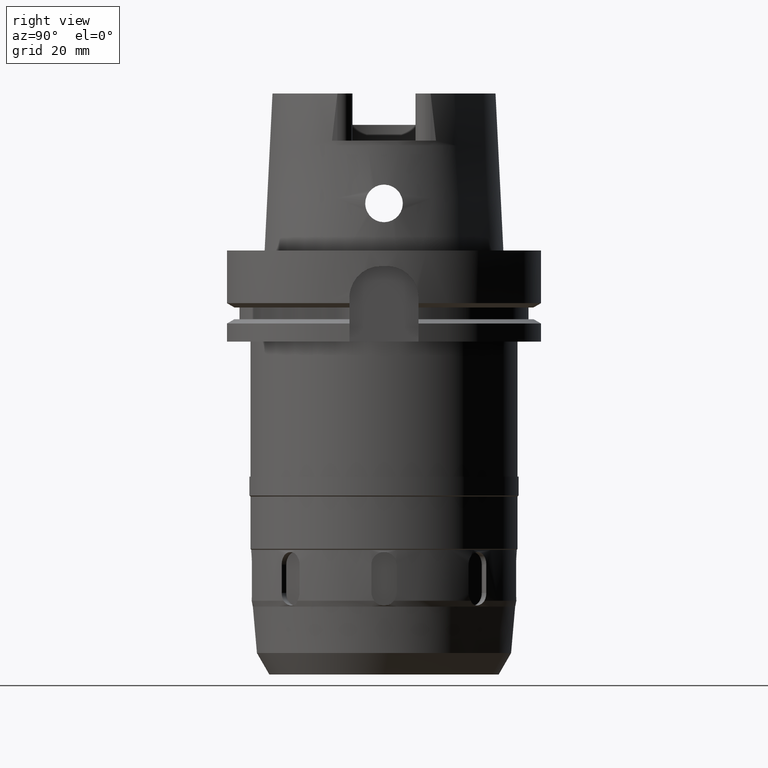
[diagram: clean part render]
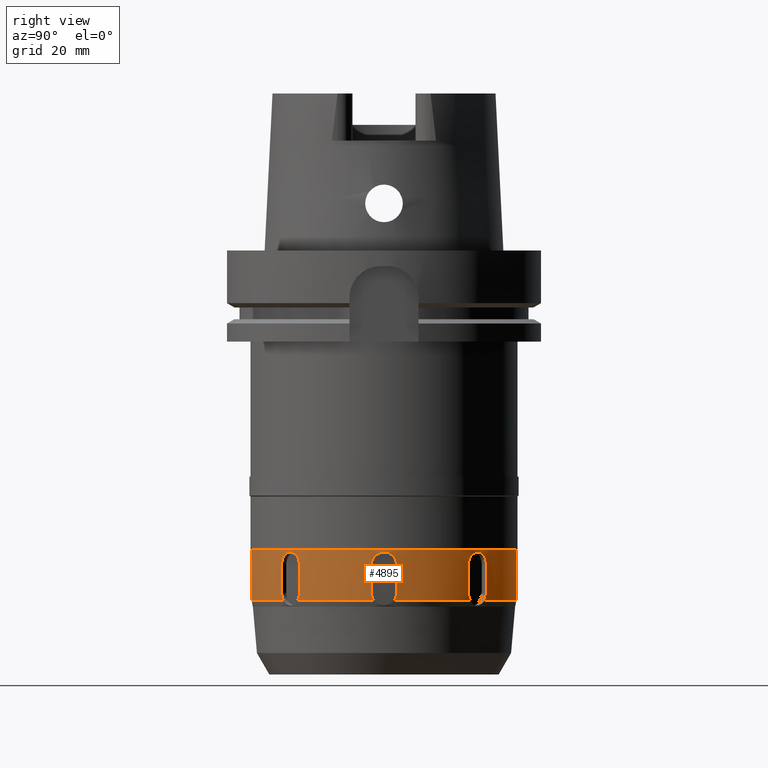
[diagram: same view with one face highlighted and labeled with its STEP entity id]
A machine part, right view. The second image highlights one B-rep face of the part: STEP entity #4895.
In plain terms, the highlighted cylindrical surface (partial cylindrical patch) has radius 42.25 mm, axis along (0, 0, 1).
Its self-contained STEP definition (entity closure, byte-faithful):
#1075=CARTESIAN_POINT('',(3.200150076244E1,2.758562032928E1,-1.115E2));
#1084=CARTESIAN_POINT('',(2.758562032928E1,3.200150076244E1,-1.115E2));
#1089=CARTESIAN_POINT('',(0.E0,0.E0,-1.115E2));
#1090=DIRECTION('',(0.E0,0.E0,1.E0));
#1091=DIRECTION('',(6.529140906339E-1,7.574319707087E-1,0.E0));
#1092=AXIS2_PLACEMENT_3D('',#1089,#1090,#1091);
#1121=CARTESIAN_POINT('',(3.122498999199E0,-4.213445739534E1,-1.115E2));
#1126=CARTESIAN_POINT('',(0.E0,0.E0,-1.115E2));
#1127=DIRECTION('',(0.E0,0.E0,1.E0));
#1128=DIRECTION('',(7.390530175619E-2,-9.972652637951E-1,0.E0));
#1129=AXIS2_PLACEMENT_3D('',#1126,#1127,#1128);
#1143=CARTESIAN_POINT('',(3.200150076244E1,-2.758562032928E1,-1.115E2));
#1148=CARTESIAN_POINT('',(0.E0,0.E0,-1.115E2));
#1149=DIRECTION('',(0.E0,0.E0,1.E0));
#1150=DIRECTION('',(7.574319707087E-1,-6.529140906339E-1,0.E0));
#1151=AXIS2_PLACEMENT_3D('',#1148,#1149,#1150);
#1165=CARTESIAN_POINT('',(4.213445739534E1,3.122498999199E0,-1.115E2));
#1170=CARTESIAN_POINT('',(0.E0,0.E0,-1.115E2));
#1171=DIRECTION('',(0.E0,0.E0,1.E0));
#1172=DIRECTION('',(9.972652637951E-1,7.390530175620E-2,0.E0));
#1173=AXIS2_PLACEMENT_3D('',#1170,#1171,#1172);
#1192=CARTESIAN_POINT('',(2.691264296360E1,3.256949721309E1,-1.E2));
#1193=CARTESIAN_POINT('',(2.691264296360E1,3.256949721309E1,-9.964412326953E1));
#1194=CARTESIAN_POINT('',(2.698342056144E1,3.251120756195E1,-9.895880278187E1));
#1195=CARTESIAN_POINT('',(2.729508354297E1,3.225108457663E1,-9.797667918873E1));
#1196=CARTESIAN_POINT('',(2.778462431295E1,3.183175565941E1,-9.714064139024E1));
#1197=CARTESIAN_POINT('',(2.841070592031E1,3.127585263605E1,-9.649703540511E1));
#1198=CARTESIAN_POINT('',(2.913141343468E1,3.060662857315E1,-9.609164836831E1));
#1199=CARTESIAN_POINT('',(2.962312872566E1,3.012739428460E1,-9.6E1));
#1200=CARTESIAN_POINT('',(2.987526150513E1,2.987526150513E1,-9.6E1));
#1205=CARTESIAN_POINT('',(2.987526150513E1,2.987526150513E1,-9.6E1));
#1206=CARTESIAN_POINT('',(3.012681051455E1,2.962371249571E1,-9.6E1));
#1207=CARTESIAN_POINT('',(3.060516093468E1,2.913293883098E1,-9.609122882433E1));
#1208=CARTESIAN_POINT('',(3.127381813467E1,2.841294227425E1,-9.649538082540E1));
#1209=CARTESIAN_POINT('',(3.182994570225E1,2.778670493551E1,-9.713789402525E1));
#1210=CARTESIAN_POINT('',(3.224999459783E1,2.729637973698E1,-9.797361371255E1));
#1211=CARTESIAN_POINT('',(3.251092526504E1,2.698376401967E1,-9.895659609773E1));
#1212=CARTESIAN_POINT('',(3.256949721309E1,2.691264296360E1,-9.964325822412E1));
#1213=CARTESIAN_POINT('',(3.256949721309E1,2.691264296360E1,-1.E2));
#1218=DIRECTION('',(0.E0,0.E0,-1.E0));
#1219=VECTOR('',#1218,9.E0);
#1220=CARTESIAN_POINT('',(3.256949721309E1,2.691264296360E1,-1.E2));
#1221=LINE('',#1220,#1219);
#1225=CARTESIAN_POINT('',(3.256949721309E1,2.691264296360E1,-1.09E2));
#1226=CARTESIAN_POINT('',(3.256949721309E1,2.691264296360E1,-1.093046823708E2));
#1227=CARTESIAN_POINT('',(3.252652807400E1,2.696478558957E1,-1.098964967229E2));
#1228=CARTESIAN_POINT('',(3.233279594765E1,2.719746119872E1,-1.107563702224E2));
#1229=CARTESIAN_POINT('',(3.212653177149E1,2.744057447265E1,-1.112614745707E2));
#1230=CARTESIAN_POINT('',(3.200150076244E1,2.758562032928E1,-1.115E2));
#1235=CARTESIAN_POINT('',(4.213445739534E1,3.122498999199E0,-1.115E2));
#1236=CARTESIAN_POINT('',(4.212030484233E1,3.313471083439E0,-1.112614759432E2));
#1237=CARTESIAN_POINT('',(4.209424868855E1,3.631228004772E0,-1.107563738306E2));
#1238=CARTESIAN_POINT('',(4.206671143643E1,3.932744535523E0,-1.098965027757E2));
#1239=CARTESIAN_POINT('',(4.206022467843E1,4.E0,-1.093046849866E2));
#1240=CARTESIAN_POINT('',(4.206022467843E1,4.E0,-1.09E2));
#1245=DIRECTION('',(0.E0,0.E0,1.E0));
#1246=VECTOR('',#1245,9.E0);
#1247=CARTESIAN_POINT('',(4.206022467843E1,4.E0,-1.09E2));
#1248=LINE('',#1247,#1246);
#1252=CARTESIAN_POINT('',(4.206022467843E1,4.E0,-1.E2));
#1253=CARTESIAN_POINT('',(4.206022467843E1,4.E0,-9.964409595300E1));
#1254=CARTESIAN_POINT('',(4.206905641517E1,3.908721013954E0,-9.895873734692E1));
#1255=CARTESIAN_POINT('',(4.210550239839E1,3.504384892782E0,-9.797661774419E1));
#1256=CARTESIAN_POINT('',(4.215514888444E1,2.861719118612E0,-9.714060963032E1));
#1257=CARTESIAN_POINT('',(4.220477085138E1,2.025947307364E0,-9.649702974634E1));
#1258=CARTESIAN_POINT('',(4.224117382355E1,1.043159636513E0,-9.609165660755E1));
#1259=CARTESIAN_POINT('',(4.225E1,3.565816213049E-1,-9.6E1));
#1260=CARTESIAN_POINT('',(4.225E1,0.E0,-9.6E1));
#1265=CARTESIAN_POINT('',(4.225E1,0.E0,-9.6E1));
#1266=CARTESIAN_POINT('',(4.225E1,-3.557355311103E-1,-9.6E1));
#1267=CARTESIAN_POINT('',(4.224121593392E1,-1.041001113723E0,
-9.609122371531E1));
#1268=CARTESIAN_POINT('',(4.220491289443E1,-2.022952271553E0,
-9.649538171520E1));
#1269=CARTESIAN_POINT('',(4.215533587534E1,-2.859034624193E0,
-9.713792164499E1));
#1270=CARTESIAN_POINT('',(4.210564213425E1,-3.502769565699E0,
-9.797367123902E1));
#1271=CARTESIAN_POINT('',(4.206909681891E1,-3.908307862595E0,
-9.895666037967E1));
#1272=CARTESIAN_POINT('',(4.206022467843E1,-4.E0,-9.964328518056E1));
#1273=CARTESIAN_POINT('',(4.206022467843E1,-4.E0,-1.E2));
#1278=DIRECTION('',(0.E0,0.E0,-1.E0));
#1279=VECTOR('',#1278,9.E0);
#1280=CARTESIAN_POINT('',(4.206022467843E1,-4.E0,-1.E2));
#1281=LINE('',#1280,#1279);
#1285=CARTESIAN_POINT('',(4.206022467843E1,-4.E0,-1.09E2));
#1286=CARTESIAN_POINT('',(4.206022467843E1,-4.E0,-1.093046823709E2));
#1287=CARTESIAN_POINT('',(4.206671131321E1,-3.932745825925E0,
-1.098964967231E2));
#1288=CARTESIAN_POINT('',(4.209424851398E1,-3.631230024554E0,
-1.107563702226E2));
#1289=CARTESIAN_POINT('',(4.212030476089E1,-3.313472182312E0,
-1.112614745707E2));
#1290=CARTESIAN_POINT('',(4.213445739534E1,-3.122498999199E0,-1.115E2));
#1295=CARTESIAN_POINT('',(3.200150076244E1,-2.758562032928E1,-1.115E2));
#1296=CARTESIAN_POINT('',(3.212653105194E1,-2.744057530739E1,
-1.112614759434E2));
#1297=CARTESIAN_POINT('',(3.233279464269E1,-2.719746275058E1,
-1.107563738310E2));
#1298=CARTESIAN_POINT('',(3.252652724860E1,-2.696478658924E1,
-1.098965027761E2));
#1299=CARTESIAN_POINT('',(3.256949721309E1,-2.691264296360E1,
-1.093046849868E2));
#1300=CARTESIAN_POINT('',(3.256949721309E1,-2.691264296360E1,-1.09E2));
#1305=DIRECTION('',(0.E0,0.E0,1.E0));
#1306=VECTOR('',#1305,9.E0);
#1307=CARTESIAN_POINT('',(3.256949721309E1,-2.691264296360E1,-1.09E2));
#1308=LINE('',#1307,#1306);
#1312=CARTESIAN_POINT('',(3.256949721309E1,-2.691264296360E1,-1.E2));
#1313=CARTESIAN_POINT('',(3.256949721309E1,-2.691264296360E1,
-9.964409625551E1));
#1314=CARTESIAN_POINT('',(3.251119826532E1,-2.698343186082E1,
-9.895873856366E1));
#1315=CARTESIAN_POINT('',(3.225106199133E1,-2.729511026822E1,
-9.797662242377E1));
#1316=CARTESIAN_POINT('',(3.183173695804E1,-2.778464567202E1,
-9.714061635166E1));
#1317=CARTESIAN_POINT('',(3.127584622027E1,-2.841071250349E1,
-9.649703485606E1));
#1318=CARTESIAN_POINT('',(3.060665528476E1,-2.913138515348E1,
-9.609166015983E1));
#1319=CARTESIAN_POINT('',(3.012740688897E1,-2.962311612129E1,
-9.600000000001E1));
#1320=CARTESIAN_POINT('',(2.987526150513E1,-2.987526150513E1,
-9.600000000001E1));
#1325=CARTESIAN_POINT('',(2.987526150513E1,-2.987526150513E1,
-9.600000000001E1));
#1326=CARTESIAN_POINT('',(2.962372352019E1,-3.012679949007E1,
-9.600000000001E1));
#1327=CARTESIAN_POINT('',(2.913296363444E1,-3.060513742838E1,
-9.609121920079E1));
#1328=CARTESIAN_POINT('',(2.841294295984E1,-3.127381787787E1,
-9.649537651769E1));
#1329=CARTESIAN_POINT('',(2.778668766295E1,-3.182996089155E1,
-9.713791313877E1));
#1330=CARTESIAN_POINT('',(2.729635599121E1,-3.225001466528E1,
-9.797366354296E1));
#1331=CARTESIAN_POINT('',(2.698375327855E1,-3.251093410902E1,
-9.895665603272E1));
#1332=CARTESIAN_POINT('',(2.691264296360E1,-3.256949721309E1,
-9.964328358017E1));
#1333=CARTESIAN_POINT('',(2.691264296360E1,-3.256949721309E1,-1.E2));
#1338=DIRECTION('',(0.E0,0.E0,-1.E0));
#1339=VECTOR('',#1338,9.E0);
#1340=CARTESIAN_POINT('',(2.691264296360E1,-3.256949721309E1,-1.E2));
#1341=LINE('',#1340,#1339);
#1345=CARTESIAN_POINT('',(2.691264296360E1,-3.256949721309E1,-1.09E2));
#1346=CARTESIAN_POINT('',(2.691264296360E1,-3.256949721309E1,
-1.093046823708E2));
#1347=CARTESIAN_POINT('',(2.696478558958E1,-3.252652807400E1,
-1.098964967229E2));
#1348=CARTESIAN_POINT('',(2.719746119872E1,-3.233279594764E1,
-1.107563702224E2));
#1349=CARTESIAN_POINT('',(2.744057447266E1,-3.212653177148E1,
-1.112614745707E2));
#1350=CARTESIAN_POINT('',(2.758562032928E1,-3.200150076244E1,-1.115E2));
#1355=CARTESIAN_POINT('',(3.122498999199E0,-4.213445739534E1,-1.115E2));
#1356=CARTESIAN_POINT('',(3.313471083442E0,-4.212030484233E1,
-1.112614759432E2));
#1357=CARTESIAN_POINT('',(3.631228004778E0,-4.209424868855E1,
-1.107563738305E2));
#1358=CARTESIAN_POINT('',(3.932744535525E0,-4.206671143643E1,
-1.098965027757E2));
#1359=CARTESIAN_POINT('',(4.E0,-4.206022467843E1,-1.093046849866E2));
#1360=CARTESIAN_POINT('',(4.E0,-4.206022467843E1,-1.09E2));
#1365=DIRECTION('',(0.E0,0.E0,1.E0));
#1366=VECTOR('',#1365,9.E0);
#1367=CARTESIAN_POINT('',(4.E0,-4.206022467843E1,-1.09E2));
#1368=LINE('',#1367,#1366);
#1372=CARTESIAN_POINT('',(4.E0,-4.206022467843E1,-1.E2));
#1373=CARTESIAN_POINT('',(4.E0,-4.206022467843E1,-9.964411288362E1));
#1374=CARTESIAN_POINT('',(3.908727827667E0,-4.206905572090E1,
-9.895879086456E1));
#1375=CARTESIAN_POINT('',(3.504456165407E0,-4.210549609205E1,
-9.797676082159E1));
#1376=CARTESIAN_POINT('',(2.861896862891E0,-4.215513616047E1,
-9.714079708869E1));
#1377=CARTESIAN_POINT('',(2.026204461012E0,-4.220475828468E1,
-9.649717709807E1));
#1378=CARTESIAN_POINT('',(1.043373405479E0,-4.224116946116E1,
-9.609170120449E1));
#1379=CARTESIAN_POINT('',(3.566683732338E-1,-4.225E1,-9.6E1));
#1380=CARTESIAN_POINT('',(1.447743281629E-14,-4.225E1,-9.6E1));
#1385=DIRECTION('',(-3.330751474785E-14,0.E0,-1.E0));
#1386=VECTOR('',#1385,7.5E-1);
#1387=CARTESIAN_POINT('',(0.E0,4.225E1,-9.525E1));
#1388=LINE('',#1387,#1386);
#1392=CARTESIAN_POINT('',(-1.980650333449E-14,4.225E1,-9.6E1));
#1393=CARTESIAN_POINT('',(3.555907458590E-1,4.225E1,-9.6E1));
#1394=CARTESIAN_POINT('',(1.040681701194E0,4.224122431111E1,-9.609113313939E1));
#1395=CARTESIAN_POINT('',(2.022912219288E0,4.220491721438E1,-9.649532908510E1));
#1396=CARTESIAN_POINT('',(2.859219658155E0,4.215532416928E1,-9.713806463999E1));
#1397=CARTESIAN_POINT('',(3.503035705308E0,4.210561984081E1,-9.797409957931E1));
#1398=CARTESIAN_POINT('',(3.908441393640E0,4.206908394286E1,-9.895721686167E1));
#1399=CARTESIAN_POINT('',(4.E0,4.206022467843E1,-9.964352176380E1));
#1400=CARTESIAN_POINT('',(4.E0,4.206022467843E1,-1.E2));
#1405=DIRECTION('',(0.E0,0.E0,-1.E0));
#1406=VECTOR('',#1405,9.E0);
#1407=CARTESIAN_POINT('',(4.E0,4.206022467843E1,-1.E2));
#1408=LINE('',#1407,#1406);
#1412=CARTESIAN_POINT('',(4.E0,4.206022467843E1,-1.09E2));
#1413=CARTESIAN_POINT('',(4.E0,4.206022467843E1,-1.093046823709E2));
#1414=CARTESIAN_POINT('',(3.932745825925E0,4.206671131321E1,-1.098964967231E2));
#1415=CARTESIAN_POINT('',(3.631230024554E0,4.209424851398E1,-1.107563702226E2));
#1416=CARTESIAN_POINT('',(3.313472182312E0,4.212030476089E1,-1.112614745707E2));
#1417=CARTESIAN_POINT('',(3.122498999199E0,4.213445739534E1,-1.115E2));
#1422=CARTESIAN_POINT('',(2.758562032928E1,3.200150076244E1,-1.115E2));
#1423=CARTESIAN_POINT('',(2.744057530738E1,3.212653105194E1,-1.112614759434E2));
#1424=CARTESIAN_POINT('',(2.719746275058E1,3.233279464270E1,-1.107563738310E2));
#1425=CARTESIAN_POINT('',(2.696478658924E1,3.252652724861E1,-1.098965027761E2));
#1426=CARTESIAN_POINT('',(2.691264296360E1,3.256949721309E1,-1.093046849868E2));
#1427=CARTESIAN_POINT('',(2.691264296360E1,3.256949721309E1,-1.09E2));
#1432=DIRECTION('',(0.E0,0.E0,1.E0));
#1433=VECTOR('',#1432,9.E0);
#1434=CARTESIAN_POINT('',(2.691264296360E1,3.256949721309E1,-1.09E2));
#1435=LINE('',#1434,#1433);
#2040=DIRECTION('',(2.620208739025E-14,0.E0,-1.E0));
#2041=VECTOR('',#2040,7.5E-1);
#2042=CARTESIAN_POINT('',(0.E0,-4.225E1,-9.525E1));
#2043=LINE('',#2042,#2041);
#2405=CARTESIAN_POINT('',(0.E0,0.E0,-9.525E1));
#2406=DIRECTION('',(0.E0,0.E0,-1.E0));
#2407=DIRECTION('',(0.E0,1.E0,0.E0));
#2408=AXIS2_PLACEMENT_3D('',#2405,#2406,#2407);
#3663=VERTEX_POINT('',#1075);
#3664=VERTEX_POINT('',#1084);
#3665=CARTESIAN_POINT('',(3.122498999199E0,4.213445739534E1,-1.115E2));
#3666=VERTEX_POINT('',#3665);
#3670=VERTEX_POINT('',#1121);
#3671=CARTESIAN_POINT('',(2.758562032928E1,-3.200150076244E1,-1.115E2));
#3672=VERTEX_POINT('',#3671);
#3673=VERTEX_POINT('',#1143);
#3674=CARTESIAN_POINT('',(4.213445739534E1,-3.122498999199E0,-1.115E2));
#3675=VERTEX_POINT('',#3674);
#3676=VERTEX_POINT('',#1165);
#3677=VERTEX_POINT('',#1225);
#3684=CARTESIAN_POINT('',(2.691264296360E1,3.256949721309E1,-1.09E2));
#3685=VERTEX_POINT('',#3684);
#3686=VERTEX_POINT('',#1205);
#3687=VERTEX_POINT('',#1213);
#3688=VERTEX_POINT('',#1192);
#3689=VERTEX_POINT('',#1240);
#3690=CARTESIAN_POINT('',(4.206022467843E1,4.E0,-1.E2));
#3691=VERTEX_POINT('',#3690);
#3692=VERTEX_POINT('',#1265);
#3693=VERTEX_POINT('',#1273);
#3694=CARTESIAN_POINT('',(4.206022467843E1,-4.E0,-1.09E2));
#3695=VERTEX_POINT('',#3694);
#3696=VERTEX_POINT('',#1300);
#3697=CARTESIAN_POINT('',(3.256949721309E1,-2.691264296360E1,-1.E2));
#3698=VERTEX_POINT('',#3697);
#3699=VERTEX_POINT('',#1325);
#3700=VERTEX_POINT('',#1333);
#3701=CARTESIAN_POINT('',(2.691264296360E1,-3.256949721309E1,-1.09E2));
#3702=VERTEX_POINT('',#3701);
#3703=VERTEX_POINT('',#1360);
#3704=CARTESIAN_POINT('',(4.E0,-4.206022467843E1,-1.E2));
#3705=VERTEX_POINT('',#3704);
#3706=VERTEX_POINT('',#1380);
#3707=CARTESIAN_POINT('',(0.E0,-4.225E1,-9.525E1));
#3708=VERTEX_POINT('',#3707);
#3709=CARTESIAN_POINT('',(1.034826545280E-14,4.225E1,-9.525E1));
#3710=VERTEX_POINT('',#3709);
#3711=CARTESIAN_POINT('',(-1.980650333449E-14,4.225E1,-9.6E1));
#3712=VERTEX_POINT('',#3711);
#3713=VERTEX_POINT('',#1400);
#3714=CARTESIAN_POINT('',(4.E0,4.206022467843E1,-1.09E2));
#3715=VERTEX_POINT('',#3714);
#4832=CARTESIAN_POINT('',(0.E0,0.E0,-1.4425E2));
#4833=DIRECTION('',(0.E0,0.E0,1.E0));
#4834=DIRECTION('',(0.E0,1.E0,0.E0));
#4835=AXIS2_PLACEMENT_3D('',#4832,#4833,#4834);
#4836=CYLINDRICAL_SURFACE('',#4835,4.225E1);
#4838=ORIENTED_EDGE('',*,*,#4837,.T.);
#4840=ORIENTED_EDGE('',*,*,#4839,.T.);
#4842=ORIENTED_EDGE('',*,*,#4841,.T.);
#4843=ORIENTED_EDGE('',*,*,#4817,.T.);
#4844=ORIENTED_EDGE('',*,*,#4806,.F.);
#4846=ORIENTED_EDGE('',*,*,#4845,.T.);
#4848=ORIENTED_EDGE('',*,*,#4847,.T.);
#4850=ORIENTED_EDGE('',*,*,#4849,.T.);
#4852=ORIENTED_EDGE('',*,*,#4851,.T.);
#4854=ORIENTED_EDGE('',*,*,#4853,.T.);
#4856=ORIENTED_EDGE('',*,*,#4855,.T.);
#4857=ORIENTED_EDGE('',*,*,#4802,.F.);
#4859=ORIENTED_EDGE('',*,*,#4858,.T.);
#4861=ORIENTED_EDGE('',*,*,#4860,.T.);
#4863=ORIENTED_EDGE('',*,*,#4862,.T.);
#4865=ORIENTED_EDGE('',*,*,#4864,.T.);
#4867=ORIENTED_EDGE('',*,*,#4866,.T.);
#4869=ORIENTED_EDGE('',*,*,#4868,.T.);
#4870=ORIENTED_EDGE('',*,*,#4798,.F.);
#4872=ORIENTED_EDGE('',*,*,#4871,.T.);
#4874=ORIENTED_EDGE('',*,*,#4873,.T.);
#4876=ORIENTED_EDGE('',*,*,#4875,.T.);
#4878=ORIENTED_EDGE('',*,*,#4877,.F.);
#4880=ORIENTED_EDGE('',*,*,#4879,.F.);
#4882=ORIENTED_EDGE('',*,*,#4881,.T.);
#4884=ORIENTED_EDGE('',*,*,#4883,.T.);
#4886=ORIENTED_EDGE('',*,*,#4885,.T.);
#4888=ORIENTED_EDGE('',*,*,#4887,.T.);
#4889=ORIENTED_EDGE('',*,*,#4787,.F.);
#4890=ORIENTED_EDGE('',*,*,#4827,.T.);
#4892=ORIENTED_EDGE('',*,*,#4891,.T.);
#4893=EDGE_LOOP('',(#4838,#4840,#4842,#4843,#4844,#4846,#4848,#4850,#4852,#4854,
#4856,#4857,#4859,#4861,#4863,#4865,#4867,#4869,#4870,#4872,#4874,#4876,#4878,
#4880,#4882,#4884,#4886,#4888,#4889,#4890,#4892));
#4894=FACE_OUTER_BOUND('',#4893,.F.);
#1093=CIRCLE('',#1092,4.225E1);
#1130=CIRCLE('',#1129,4.225E1);
#1152=CIRCLE('',#1151,4.225E1);
#1174=CIRCLE('',#1173,4.225E1);
#1201=B_SPLINE_CURVE_WITH_KNOTS('',3,(#1192,#1193,#1194,#1195,#1196,#1197,#1198,
#1199,#1200),.UNSPECIFIED.,.F.,.F.,(4,1,1,1,1,1,4),(0.E0,1.666666666667E-1,
3.333333333333E-1,5.E-1,6.666666666667E-1,8.333333333333E-1,1.E0),
.UNSPECIFIED.);
#1214=B_SPLINE_CURVE_WITH_KNOTS('',3,(#1205,#1206,#1207,#1208,#1209,#1210,#1211,
#1212,#1213),.UNSPECIFIED.,.F.,.F.,(4,1,1,1,1,1,4),(0.E0,1.666666666667E-1,
3.333333333333E-1,5.E-1,6.666666666667E-1,8.333333333333E-1,1.E0),
.UNSPECIFIED.);
#1231=B_SPLINE_CURVE_WITH_KNOTS('',3,(#1225,#1226,#1227,#1228,#1229,#1230),
.UNSPECIFIED.,.F.,.F.,(4,1,1,4),(0.E0,3.333333333333E-1,6.666666666667E-1,1.E0),
.UNSPECIFIED.);
#1241=B_SPLINE_CURVE_WITH_KNOTS('',3,(#1235,#1236,#1237,#1238,#1239,#1240),
.UNSPECIFIED.,.F.,.F.,(4,1,1,4),(0.E0,3.333333333333E-1,6.666666666667E-1,1.E0),
.UNSPECIFIED.);
#1261=B_SPLINE_CURVE_WITH_KNOTS('',3,(#1252,#1253,#1254,#1255,#1256,#1257,#1258,
#1259,#1260),.UNSPECIFIED.,.F.,.F.,(4,1,1,1,1,1,4),(0.E0,1.666666666667E-1,
3.333333333333E-1,5.E-1,6.666666666667E-1,8.333333333333E-1,1.E0),
.UNSPECIFIED.);
#1274=B_SPLINE_CURVE_WITH_KNOTS('',3,(#1265,#1266,#1267,#1268,#1269,#1270,#1271,
#1272,#1273),.UNSPECIFIED.,.F.,.F.,(4,1,1,1,1,1,4),(0.E0,1.666666666667E-1,
3.333333333333E-1,5.E-1,6.666666666667E-1,8.333333333333E-1,1.E0),
.UNSPECIFIED.);
#1291=B_SPLINE_CURVE_WITH_KNOTS('',3,(#1285,#1286,#1287,#1288,#1289,#1290),
.UNSPECIFIED.,.F.,.F.,(4,1,1,4),(0.E0,3.333333333333E-1,6.666666666667E-1,1.E0),
.UNSPECIFIED.);
#1301=B_SPLINE_CURVE_WITH_KNOTS('',3,(#1295,#1296,#1297,#1298,#1299,#1300),
.UNSPECIFIED.,.F.,.F.,(4,1,1,4),(0.E0,3.333333333333E-1,6.666666666667E-1,1.E0),
.UNSPECIFIED.);
#1321=B_SPLINE_CURVE_WITH_KNOTS('',3,(#1312,#1313,#1314,#1315,#1316,#1317,#1318,
#1319,#1320),.UNSPECIFIED.,.F.,.F.,(4,1,1,1,1,1,4),(0.E0,1.666666666667E-1,
3.333333333333E-1,5.E-1,6.666666666667E-1,8.333333333333E-1,1.E0),
.UNSPECIFIED.);
#1334=B_SPLINE_CURVE_WITH_KNOTS('',3,(#1325,#1326,#1327,#1328,#1329,#1330,#1331,
#1332,#1333),.UNSPECIFIED.,.F.,.F.,(4,1,1,1,1,1,4),(0.E0,1.666666666667E-1,
3.333333333333E-1,5.E-1,6.666666666667E-1,8.333333333333E-1,1.E0),
.UNSPECIFIED.);
#1351=B_SPLINE_CURVE_WITH_KNOTS('',3,(#1345,#1346,#1347,#1348,#1349,#1350),
.UNSPECIFIED.,.F.,.F.,(4,1,1,4),(0.E0,3.333333333333E-1,6.666666666667E-1,1.E0),
.UNSPECIFIED.);
#1361=B_SPLINE_CURVE_WITH_KNOTS('',3,(#1355,#1356,#1357,#1358,#1359,#1360),
.UNSPECIFIED.,.F.,.F.,(4,1,1,4),(0.E0,3.333333333333E-1,6.666666666667E-1,1.E0),
.UNSPECIFIED.);
#1381=B_SPLINE_CURVE_WITH_KNOTS('',3,(#1372,#1373,#1374,#1375,#1376,#1377,#1378,
#1379,#1380),.UNSPECIFIED.,.F.,.F.,(4,1,1,1,1,1,4),(0.E0,1.666666666667E-1,
3.333333333333E-1,5.E-1,6.666666666667E-1,8.333333333333E-1,1.E0),
.UNSPECIFIED.);
#1401=B_SPLINE_CURVE_WITH_KNOTS('',3,(#1392,#1393,#1394,#1395,#1396,#1397,#1398,
#1399,#1400),.UNSPECIFIED.,.F.,.F.,(4,1,1,1,1,1,4),(0.E0,1.666666666667E-1,
3.333333333333E-1,5.E-1,6.666666666667E-1,8.333333333333E-1,1.E0),
.UNSPECIFIED.);
#1418=B_SPLINE_CURVE_WITH_KNOTS('',3,(#1412,#1413,#1414,#1415,#1416,#1417),
.UNSPECIFIED.,.F.,.F.,(4,1,1,4),(0.E0,3.333333333333E-1,6.666666666667E-1,1.E0),
.UNSPECIFIED.);
#1428=B_SPLINE_CURVE_WITH_KNOTS('',3,(#1422,#1423,#1424,#1425,#1426,#1427),
.UNSPECIFIED.,.F.,.F.,(4,1,1,4),(0.E0,3.333333333333E-1,6.666666666667E-1,1.E0),
.UNSPECIFIED.);
#2409=CIRCLE('',#2408,4.225E1);
#4787=EDGE_CURVE('',#3664,#3666,#1093,.T.);
#4798=EDGE_CURVE('',#3670,#3672,#1130,.T.);
#4802=EDGE_CURVE('',#3673,#3675,#1152,.T.);
#4806=EDGE_CURVE('',#3676,#3663,#1174,.T.);
#4817=EDGE_CURVE('',#3677,#3663,#1231,.T.);
#4827=EDGE_CURVE('',#3664,#3685,#1428,.T.);
#4837=EDGE_CURVE('',#3688,#3686,#1201,.T.);
#4839=EDGE_CURVE('',#3686,#3687,#1214,.T.);
#4841=EDGE_CURVE('',#3687,#3677,#1221,.T.);
#4845=EDGE_CURVE('',#3676,#3689,#1241,.T.);
#4847=EDGE_CURVE('',#3689,#3691,#1248,.T.);
#4849=EDGE_CURVE('',#3691,#3692,#1261,.T.);
#4851=EDGE_CURVE('',#3692,#3693,#1274,.T.);
#4853=EDGE_CURVE('',#3693,#3695,#1281,.T.);
#4855=EDGE_CURVE('',#3695,#3675,#1291,.T.);
#4858=EDGE_CURVE('',#3673,#3696,#1301,.T.);
#4860=EDGE_CURVE('',#3696,#3698,#1308,.T.);
#4862=EDGE_CURVE('',#3698,#3699,#1321,.T.);
#4864=EDGE_CURVE('',#3699,#3700,#1334,.T.);
#4866=EDGE_CURVE('',#3700,#3702,#1341,.T.);
#4868=EDGE_CURVE('',#3702,#3672,#1351,.T.);
#4871=EDGE_CURVE('',#3670,#3703,#1361,.T.);
#4873=EDGE_CURVE('',#3703,#3705,#1368,.T.);
#4875=EDGE_CURVE('',#3705,#3706,#1381,.T.);
#4877=EDGE_CURVE('',#3708,#3706,#2043,.T.);
#4879=EDGE_CURVE('',#3710,#3708,#2409,.T.);
#4881=EDGE_CURVE('',#3710,#3712,#1388,.T.);
#4883=EDGE_CURVE('',#3712,#3713,#1401,.T.);
#4885=EDGE_CURVE('',#3713,#3715,#1408,.T.);
#4887=EDGE_CURVE('',#3715,#3666,#1418,.T.);
#4891=EDGE_CURVE('',#3685,#3688,#1435,.T.);
#4895=ADVANCED_FACE('',(#4894),#4836,.T.);